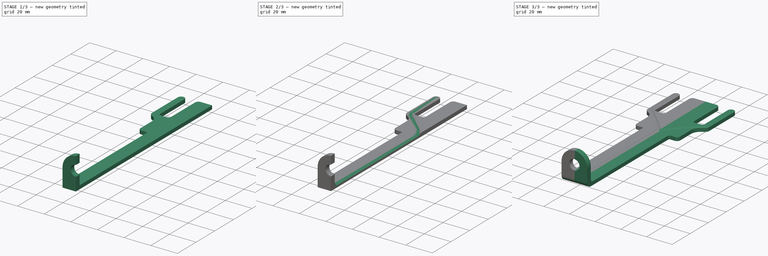
[diagram: build sequence overview — one tinted view per stage of 3, left to right]
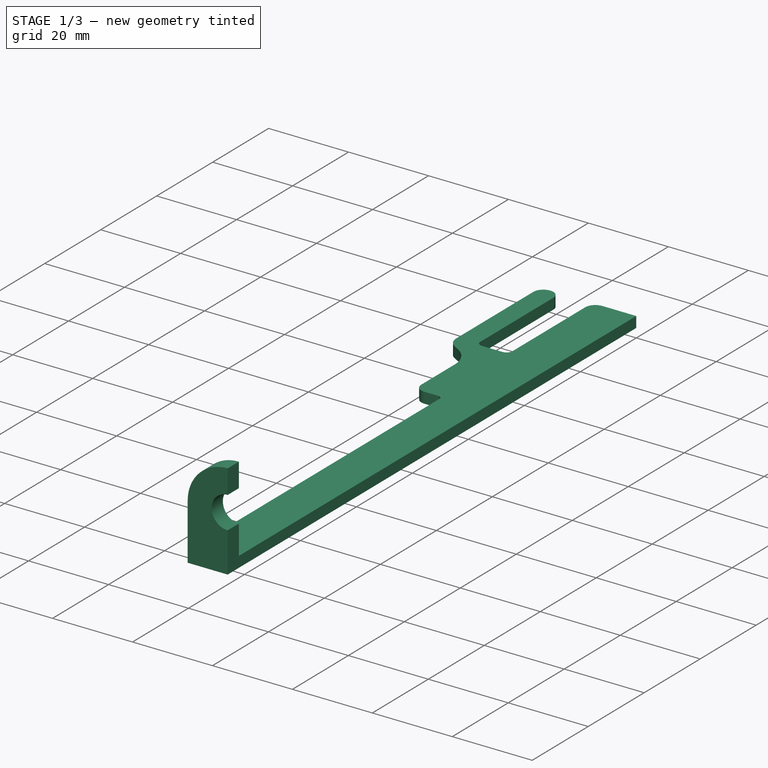
[diagram: stage 1 of 3 — iso view after this stage's code; geometry added in this stage tinted green]
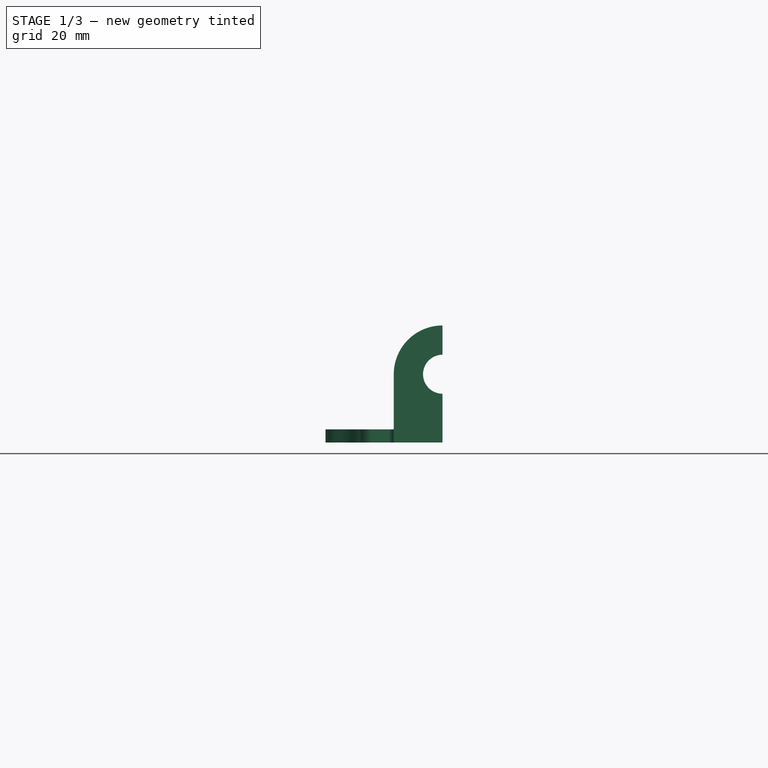
[diagram: stage 1 of 3 — front view after this stage's code; geometry added in this stage tinted green]
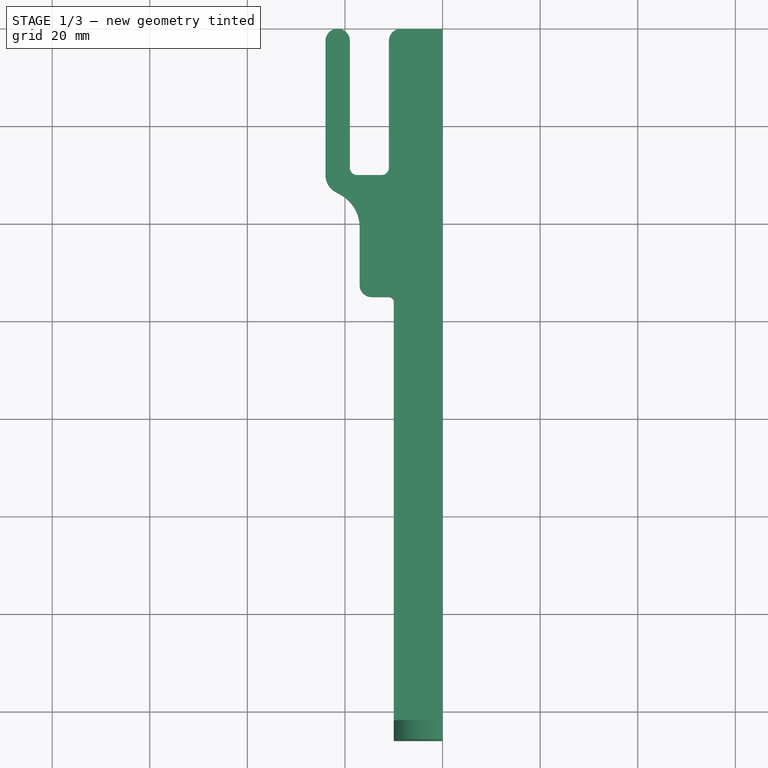
[diagram: stage 1 of 3 — top view after this stage's code; geometry added in this stage tinted green]
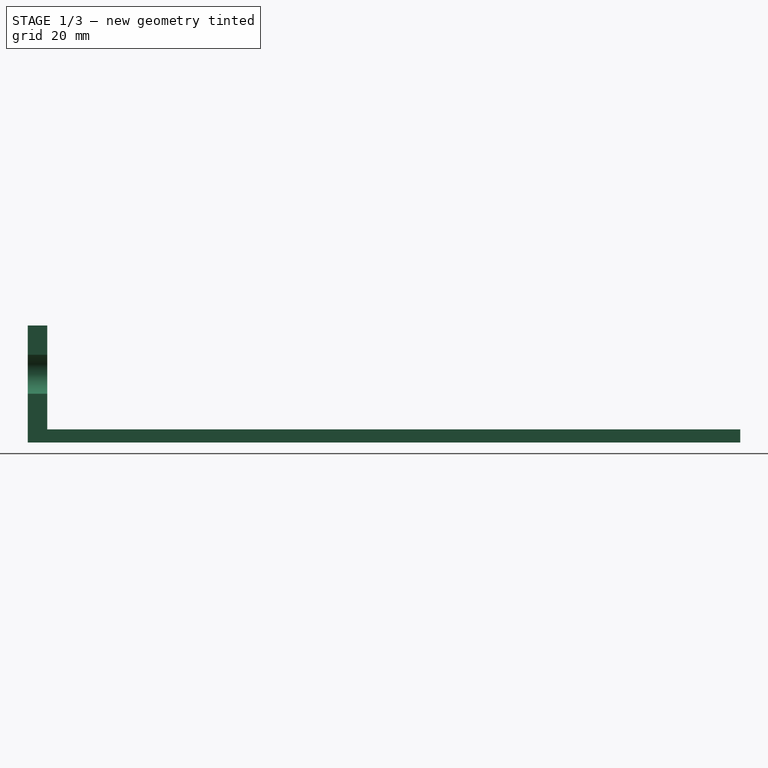
[diagram: stage 1 of 3 — right view after this stage's code; geometry added in this stage tinted green]
FCSTD DOCUMENT  (FreeCAD 0.19R24291 (Git))
Label: shovel
License: All rights reserved
LicenseURL: http://en.wikipedia.org/wiki/All_rights_reserved
objects: Sketcher::SketchObject×7, PartDesign::Pad×3, PartDesign::AdditivePipe×1, PartDesign::Line×1, PartDesign::Revolution×1, PartDesign::Pocket×1, PartDesign::Mirrored×1, PartDesign::Body×1
note: 22 computed .brp shape members not serialized (recipe doc carries the construction recipe); baked Part::Feature solids carry a one-line shape summary decoded from their .brp

FEATURE [Sketcher::SketchObject] Sketch
  FullyConstrained = false
  MapMode = 5
  Support = -> [XY_Plane]
  sketch-geometry (24):
    g0: LineSegment StartX=0 StartY=0 StartZ=0 EndX=-8.5 EndY=0 EndZ=0
    g1: LineSegment StartX=-11 StartY=-2.5 StartZ=0 EndX=-11 EndY=-28.5 EndZ=0
    g2: LineSegment StartX=-12.5 StartY=-30 StartZ=0 EndX=-17.5 EndY=-30 EndZ=0
    g3: LineSegment StartX=-19 StartY=-28.5 StartZ=0 EndX=-19 EndY=-2.5 EndZ=0
    g4: LineSegment StartX=-24 StartY=-2.5 StartZ=0 EndX=-24 EndY=-30 EndZ=0
    g5: ArcOfCircle CenterX=-21.5 CenterY=-2.5 CenterZ=0 NormalX=0 NormalY=0 NormalZ=1 AngleXU=0 Radius=2.5 StartAngle=6.28319 EndAngle=9.42478
    g6: ArcOfCircle CenterX=-8.5 CenterY=-2.5 CenterZ=0 NormalX=0 NormalY=0 NormalZ=1 AngleXU=0 Radius=2.5 StartAngle=1.5708 EndAngle=3.14159
    g7: ArcOfCircle CenterX=-20.0981 CenterY=-30 CenterZ=0 NormalX=0 NormalY=0 NormalZ=1 AngleXU=0 Radius=3.90192 StartAngle=3.14159 EndAngle=4.18879
    g8: ArcOfCircle CenterX=-12.5 CenterY=-28.5 CenterZ=0 NormalX=0 NormalY=0 NormalZ=1 AngleXU=0 Radius=1.5 StartAngle=4.71239 EndAngle=6.28319
    g9: ArcOfCircle CenterX=-17.5 CenterY=-28.5 CenterZ=0 NormalX=0 NormalY=0 NormalZ=1 AngleXU=0 Radius=1.5 StartAngle=3.14159 EndAngle=4.71239
    g10: LineSegment StartX=-19 StartY=49.8892 StartZ=0 EndX=-15 EndY=49.8892 EndZ=0
    g11: LineSegment StartX=-15 StartY=49.8892 StartZ=0 EndX=-11 EndY=49.8892 EndZ=0
    g12: LineSegment StartX=-10 StartY=-56 StartZ=0 EndX=-10 EndY=-142 EndZ=0
    g13: ArcOfCircle CenterX=-24.5 CenterY=-40.6244 CenterZ=0 NormalX=0 NormalY=0 NormalZ=1 AngleXU=0 Radius=7.5 StartAngle=5.6727e-08 EndAngle=1.0472
    g14: ArcOfCircle CenterX=-17.5 CenterY=-28.5 CenterZ=0 NormalX=0 NormalY=0 NormalZ=1 AngleXU=0 Radius=6.5 StartAngle=1.85301 EndAngle=4.85802
    g15: LineSegment StartX=-22.049 StartY=-33.3792 StartZ=0 EndX=-20.75 EndY=-34.1292 EndZ=0
    g16: ArcOfCircle CenterX=-14.5 CenterY=-52.5 CenterZ=0 NormalX=0 NormalY=0 NormalZ=1 AngleXU=0 Radius=2.5 StartAngle=3.14159 EndAngle=4.71239
    g17: ArcOfCircle CenterX=-11 CenterY=-56 CenterZ=0 NormalX=0 NormalY=0 NormalZ=1 AngleXU=0 Radius=1 StartAngle=6.28317 EndAngle=7.85399
    g18: LineSegment StartX=-17 StartY=-40.6244 StartZ=0 EndX=-17 EndY=-52.5 EndZ=0
    g19: LineSegment StartX=-10 StartY=-142 StartZ=0 EndX=0 EndY=-142 EndZ=0
    g20: LineSegment StartX=-14.5 StartY=-55 StartZ=0 EndX=-11 EndY=-55 EndZ=0
    g21: LineSegment StartX=0 StartY=0 StartZ=0 EndX=0 EndY=-142 EndZ=0
    g22: LineSegment StartX=-19 StartY=49.8892 StartZ=0 EndX=-17 EndY=49.8892 EndZ=0
    g23: LineSegment StartX=-17 StartY=49.8892 StartZ=0 EndX=-15 EndY=49.8892 EndZ=0
  constraints (71):
    c: Horizontal(g0)
    c: Vertical(g1)
    c: Horizontal(g2)
    c: Vertical(g3)
    c: Vertical(g4)
    c: Coincident(g5,g3)
    c: Coincident(g5,g4)
    c: Tangent(g1,g6) = -1.5708
    c: Tangent(g0,g6) = -1.5708
    c: Equal(g6,g5)
    c: Tangent(g5,g3)
    c: Tangent(g5,g4)
    c: Horizontal(g5,g6)
    c: PointOnObject(g7,g2)
    c: Coincident(g7,g4)
    c: Tangent(g7,g4)
    c: Tangent(g2,g8) = 1.5708
    c: Tangent(g1,g8) = 1.5708
    c: Tangent(g2,g9) = 1.5708
    c: Tangent(g3,g9) = 1.5708
    c: Equal(g8,g9)
    c: PointOnObject(g10,g3)
    c: Horizontal(g10)
    c: Coincident(g11,g10)
    c: PointOnObject(g11,g1)
    c: Horizontal(g11)
    c: Equal(g10,g11)
    c: Distance(g11,g10) = 8
    c: Distance(g10,g-2) = 15
    c: Diameter(g5) = 5
    c: DistanceY(g2,g0) = 30
    c: Diameter(g8) = 3
    c: Vertical(g12)
    c: Distance(g12,g-2) = 10
    c: Coincident(g14,g9)
    c: Diameter(g14) = 13
    c: Tangent(g13,g14)
    c: Coincident(g15,g7)
    c: Coincident(g15,g13)
    c: Tangent(g7,g15)
    c: Tangent(g15,g13)
    c: Coincident(g17,g12)
    c: Tangent(g17,g12)
    c: DistanceY(g16,g0) = 55
    c: Coincident(g18,g13)
    c: Coincident(g18,g16)
    c: Vertical(g18)
    c: Tangent(g18,g16)
    c: Tangent(g18,g13)
    c: Coincident(g19,g12)
    c: PointOnObject(g19,g-2)
    c: Horizontal(g19)
    c: DistanceY(g19,g16) = 87
    c: Coincident(g20,g16)
    c: Coincident(g20,g17)
    c: Horizontal(g20)
    c: Tangent(g16,g20)
    c: Tangent(g20,g17)
    c: Coincident(g21,g0)
    c: Coincident(g21,g19)
    c: Coincident(g22,g10)
    c: PointOnObject(g22,g10)
    c: Coincident(g23,g22)
    c: Coincident(g23,g10)
    c: Equal(g22,g23)
    c: Vertical(g22,g13)
    c: Diameter(g16) = 5
    c: Tangent(g14,g15)
    c: Diameter(g13) = 15
    c: Coincident(g0,g-1)
    c: Diameter(g17) = 2
FEATURE [PartDesign::Pad] Pad
  Direction = (1,1,1)
  Length = 2.7
  Length2 = 100
  Profile = -> Sketch
  Type = 0
FEATURE [Sketcher::SketchObject] Sketch001
  ExternalGeometry = -> [Pad]
  FullyConstrained = true
  MapMode = 5
  Placement = pos=(0,-142,0) rot=(1,0,0;1.5708rad)
  Support = -> [Pad]
  sketch-geometry (8):
    g0: ArcOfCircle CenterX=0 CenterY=14 CenterZ=0 NormalX=0 NormalY=0 NormalZ=1 AngleXU=0 Radius=4 StartAngle=1.5708 EndAngle=4.71239
    g1: ArcOfCircle CenterX=0 CenterY=14 CenterZ=0 NormalX=0 NormalY=0 NormalZ=1 AngleXU=0 Radius=10 StartAngle=1.5708 EndAngle=3.14159
    g2: LineSegment StartX=-10 StartY=2.7 StartZ=0 EndX=-10 EndY=14 EndZ=0
    g3: LineSegment StartX=0 StartY=24 StartZ=0 EndX=0 EndY=18 EndZ=0
    g4: LineSegment StartX=0 StartY=10 StartZ=0 EndX=0 EndY=2.7 EndZ=0
    g5: LineSegment StartX=-10 StartY=2.7 StartZ=0 EndX=-10 EndY=0 EndZ=0
    g6: LineSegment StartX=-10 StartY=0 StartZ=0 EndX=0 EndY=0 EndZ=0
    g7: LineSegment StartX=0 StartY=0 StartZ=0 EndX=0 EndY=2.7 EndZ=0
  constraints (21):
    c: PointOnObject(g0,g-2)
    c: PointOnObject(g0,g-2)
    c: Coincident(g1,g0)
    c: Coincident(g2,g-3)
    c: Vertical(g2)
    c: Coincident(g1,g2)
    c: PointOnObject(g1,g-2)
    c: PointOnObject(g0,g-2)
    c: Coincident(g3,g1)
    c: Coincident(g3,g0)
    c: Coincident(g4,g0)
    c: Coincident(g4,g-3)
    c: Distance(g0,g-1) = 10
    c: Diameter(g0) = 8
    c: Tangent(g2,g1)
    c: Coincident(g5,g2)
    c: Coincident(g5,g-4)
    c: Coincident(g6,g5)
    c: Coincident(g6,g-1)
    c: Coincident(g7,g6)
    c: Coincident(g7,g4)
FEATURE [PartDesign::Pad] Pad001
  BaseFeature = -> Pad
  Direction = (1,1,1)
  Length = 4
  Length2 = 100
  Profile = -> Sketch001
  Type = 0
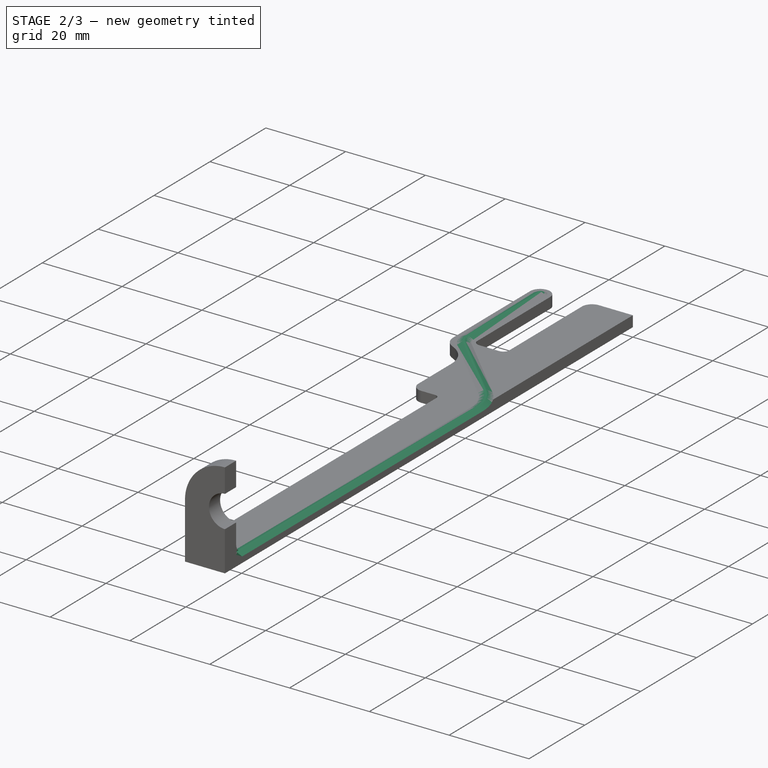
[diagram: stage 2 of 3 — iso view after this stage's code; geometry added in this stage tinted green]
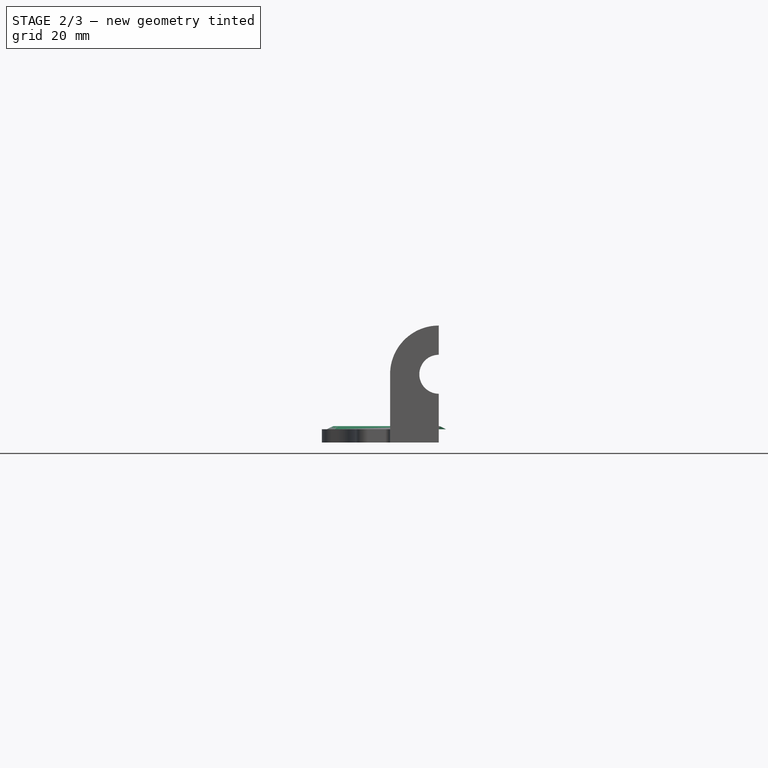
[diagram: stage 2 of 3 — front view after this stage's code; geometry added in this stage tinted green]
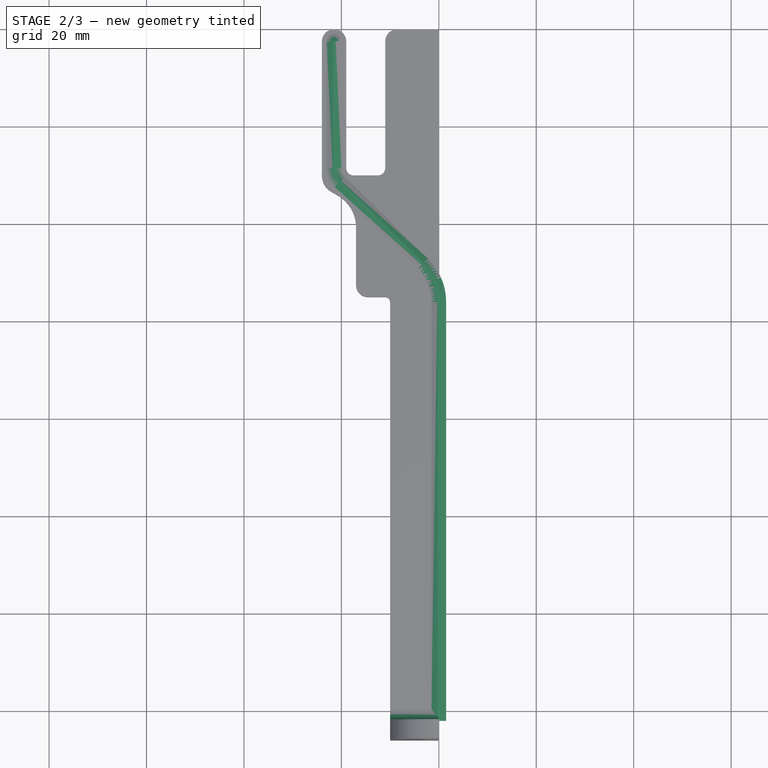
[diagram: stage 2 of 3 — top view after this stage's code; geometry added in this stage tinted green]
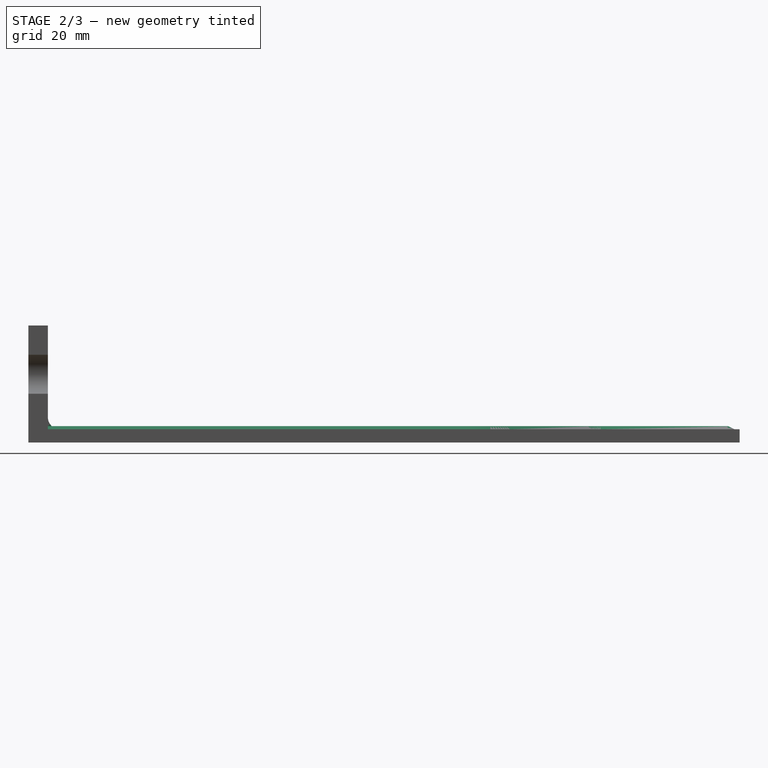
[diagram: stage 2 of 3 — right view after this stage's code; geometry added in this stage tinted green]
FEATURE [Sketcher::SketchObject] Sketch002
  ExternalGeometry = -> [Pad001]
  FullyConstrained = true
  MapMode = 5
  Placement = pos=(0,-142,0) rot=(0,0.707107,0.707107;3.14159rad)
  Support = -> [Pad001]
  sketch-geometry (4):
    g0: ArcOfCircle CenterX=0 CenterY=2.6 CenterZ=0 NormalX=0 NormalY=0 NormalZ=1 AngleXU=0 Radius=0.75 StartAngle=1.11503 EndAngle=2.02656
    g1: LineSegment StartX=0.33011 StartY=3.27344 StartZ=0 EndX=1.5 EndY=2.7 EndZ=0
    g2: LineSegment StartX=-0.33011 StartY=3.27344 StartZ=0 EndX=-1.5 EndY=2.7 EndZ=0
    g3: LineSegment StartX=-1.5 StartY=2.7 StartZ=0 EndX=1.5 EndY=2.7 EndZ=0
  constraints (13):
    c: PointOnObject(g0,g-2)
    c: Coincident(g1,g0)
    c: PointOnObject(g1,g-3)
    c: Tangent(g1,g0)
    c: Coincident(g2,g0)
    c: PointOnObject(g2,g-3)
    c: Equal(g1,g2)
    c: Tangent(g2,g0)
    c: Diameter(g0) = 1.5
    c: Distance(g1,g2) = 3
    c: Distance(g-3,g0) = 0.1
    c: Coincident(g3,g2)
    c: Coincident(g3,g1)
FEATURE [Sketcher::SketchObject] Sketch003
  ExternalGeometry = -> [Pad001]
  FullyConstrained = true
  MapMode = 5
  Placement = pos=(0,0,2.7) rot=(0,0,1;0rad)
  Support = -> [Pad001]
  sketch-geometry (5):
    g0: LineSegment StartX=0 StartY=-142 StartZ=0 EndX=-6.06448e-11 EndY=-56 EndZ=0
    g1: LineSegment StartX=-3.27085 StartY=-48.1731 StartZ=0 EndX=-20.3106 EndY=-31.3461 EndZ=0
    g2: LineSegment StartX=-21.5 StartY=-28.5 StartZ=0 EndX=-21.5 EndY=-2.5 EndZ=0
    g3: ArcOfCircle CenterX=-17.5 CenterY=-28.5 CenterZ=0 NormalX=0 NormalY=0 NormalZ=1 AngleXU=0 Radius=4 StartAngle=3.14159 EndAngle=3.93327
    g4: ArcOfCircle CenterX=-11 CenterY=-56 CenterZ=0 NormalX=0 NormalY=0 NormalZ=1 AngleXU=0 Radius=11 StartAngle=6.28318 EndAngle=7.07487
  constraints (14):
    c: Coincident(g0,g-3)
    c: PointOnObject(g0,g-2)
    c: Coincident(g2,g-6)
    c: Vertical(g2)
    c: Coincident(g3,g-5)
    c: Coincident(g3,g1)
    c: Coincident(g3,g2)
    c: Coincident(g4,g-4)
    c: Coincident(g4,g0)
    c: Coincident(g4,g1)
    c: Tangent(g4,g1)
    c: Tangent(g1,g3)
    c: Tangent(g3,g2)
    c: Tangent(g4,g0)
FEATURE [PartDesign::AdditivePipe] AdditivePipe
  AuxilleryCurvelinear = true
  AuxillerySpineTangent = false
  BaseFeature = -> Pad001
  Binormal = (0,0,0)
  Mode = 0
  Profile = -> Sketch002
  Spine = -> Sketch003
  SpineTangent = false
  Transformation = 0
  Transition = 0
FEATURE [Sketcher::SketchObject] Sketch004
  ExternalGeometry = -> [AdditivePipe]
  FullyConstrained = true
  MapMode = 5
  Placement = pos=(-10,0,0) rot=(0.57735,-0.57735,-0.57735;2.0944rad)
  Support = -> [AdditivePipe]
  sketch-geometry (3):
    g0: ArcOfCircle CenterX=139.5 CenterY=5.2 CenterZ=0 NormalX=0 NormalY=0 NormalZ=1 AngleXU=0 Radius=2.5 StartAngle=4.71239 EndAngle=6.28318
    g1: LineSegment StartX=142 StartY=2.7 StartZ=0 EndX=142 EndY=5.19998 EndZ=0
    g2: LineSegment StartX=142 StartY=2.7 StartZ=0 EndX=139.5 EndY=2.7 EndZ=0
  constraints (9):
    c: Coincident(g1,g-3)
    c: Coincident(g1,g0)
    c: Vertical(g1)
    c: Tangent(g1,g0)
    c: Coincident(g2,g1)
    c: Coincident(g2,g0)
    c: Tangent(g2,g0)
    c: Horizontal(g2)
    c: Diameter(g0) = 5
FEATURE [PartDesign::Pad] Pad002
  BaseFeature = -> AdditivePipe
  Direction = (1,1,1)
  Length = 10
  Length2 = 100
  Profile = -> Sketch004
  Type = 3
  UpToFace = -> AdditivePipe [Face36]
FEATURE [Sketcher::SketchObject] Sketch005
  ExternalGeometry = -> [Pad002]
  FullyConstrained = true
  MapMode = 5
  Placement = pos=(8.4612e-06,-2.49993,-1.83e-14) rot=(-1e-06,0.707107,0.707107;3.1416rad)
  Support = -> [Pad002]
  sketch-geometry (4):
    g0: ArcOfCircle CenterX=21.5 CenterY=2.6 CenterZ=0 NormalX=0 NormalY=0 NormalZ=1 AngleXU=0 Radius=0.75 StartAngle=1.5708 EndAngle=2.02656
    g1: LineSegment StartX=21.1699 StartY=3.27344 StartZ=0 EndX=20 EndY=2.7 EndZ=0
    g2: LineSegment StartX=20 StartY=2.7 StartZ=0 EndX=21.5 EndY=2.7 EndZ=0
    g3: LineSegment StartX=21.5 StartY=2.7 StartZ=0 EndX=21.5 EndY=3.35 EndZ=0
  constraints (10):
    c: Coincident(g0,g-3)
    c: Coincident(g0,g-4)
    c: Coincident(g1,g0)
    c: Coincident(g1,g-4)
    c: Coincident(g2,g1)
    c: Horizontal(g2)
    c: Coincident(g3,g2)
    c: Coincident(g3,g0)
    c: Vertical(g3)
    c: PointOnObject(g0,g3)
FEATURE [PartDesign::Line] DatumLine
  AttacherType = Attacher::AttachEngineLine
  Length = 20
  MapMode = 29
  Placement = pos=(-21.5,-2.5,-1.82e-14) rot=(0,0,1;0rad)
  ResizeMode = 0
  Support = -> [Sketch005]
FEATURE [PartDesign::Revolution] Revolution
  Angle = 180
  Axis = (0,-7.5e-15,1)
  Base = (-21.5,-2.5,-1.82e-14)
  BaseFeature = -> Pad002
  Profile = -> Sketch005
  ReferenceAxis = -> DatumLine
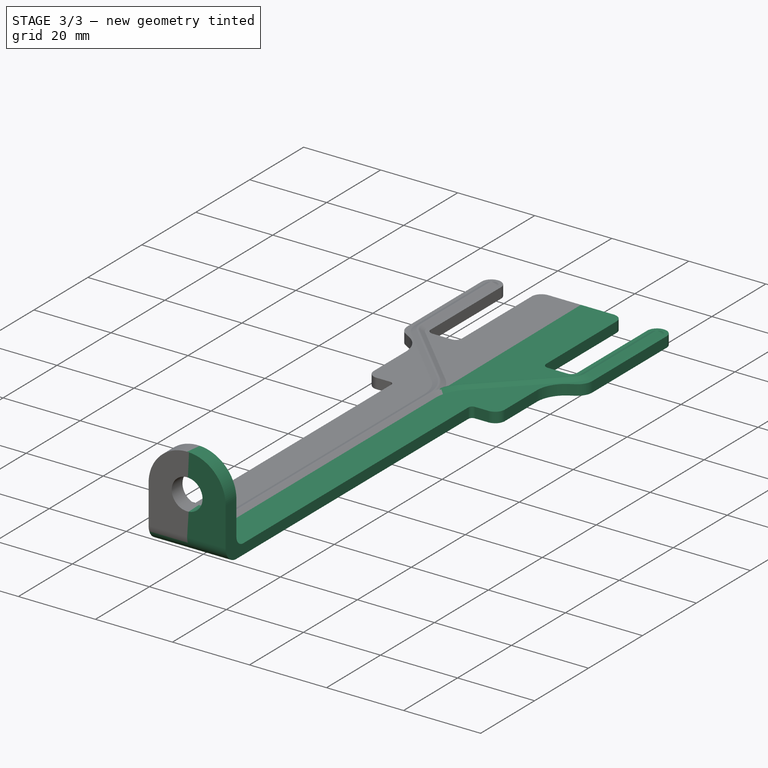
[diagram: stage 3 of 3 — iso view after this stage's code; geometry added in this stage tinted green]
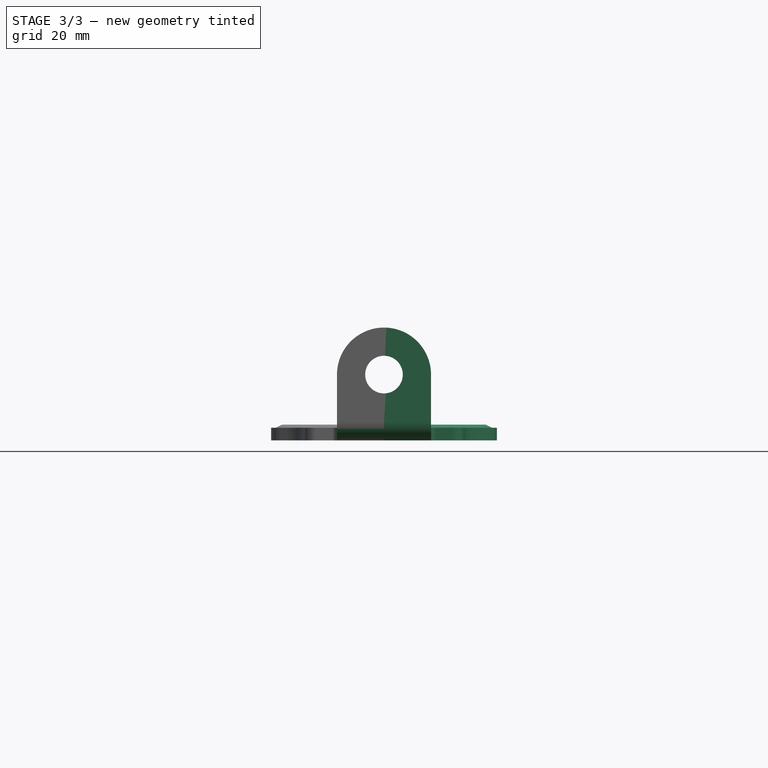
[diagram: stage 3 of 3 — front view after this stage's code; geometry added in this stage tinted green]
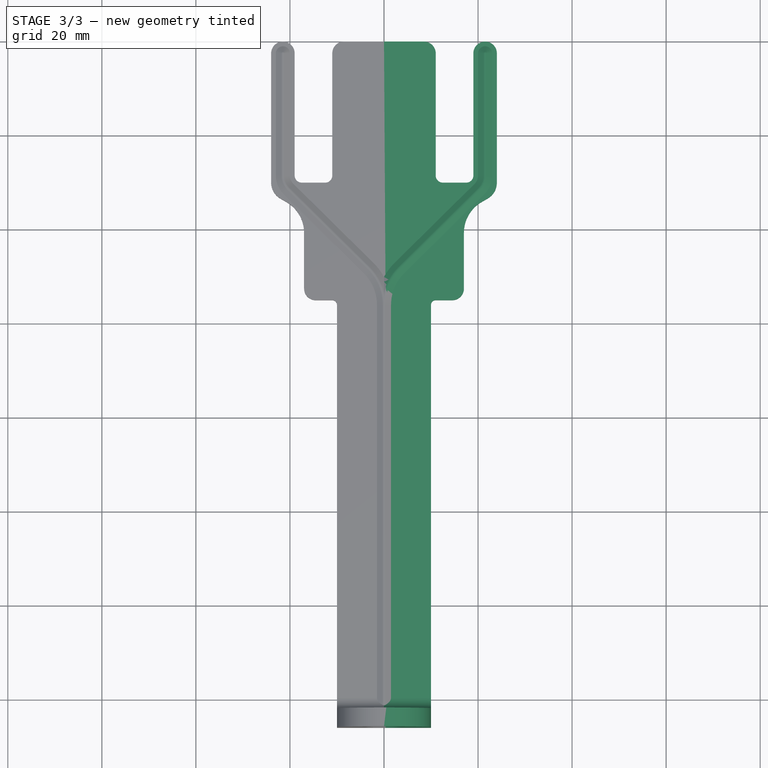
[diagram: stage 3 of 3 — top view after this stage's code; geometry added in this stage tinted green]
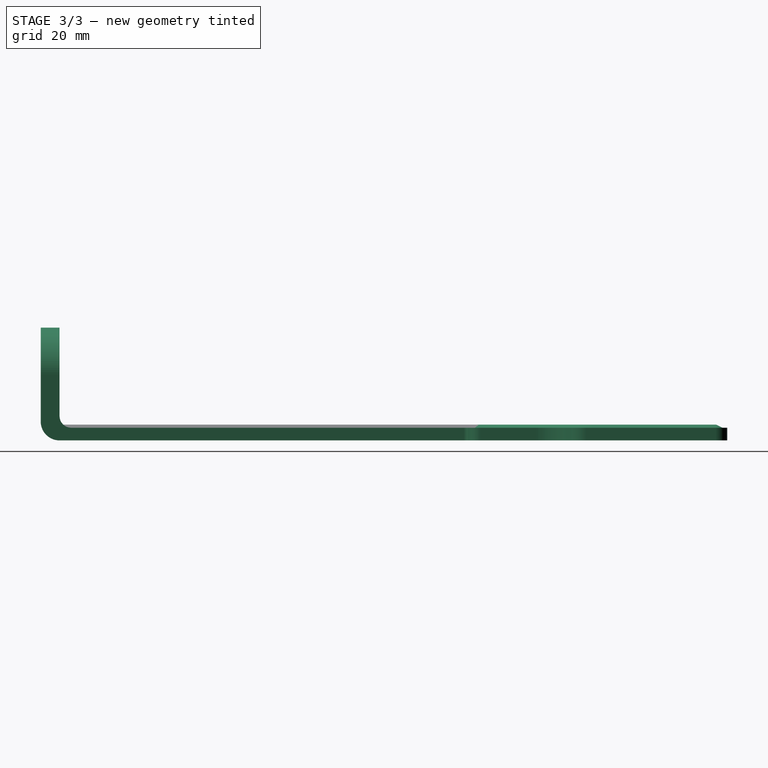
[diagram: stage 3 of 3 — right view after this stage's code; geometry added in this stage tinted green]
FEATURE [Sketcher::SketchObject] Sketch006
  ExternalGeometry = -> [Revolution]
  FullyConstrained = true
  MapMode = 5
  Placement = pos=(-10,0,0) rot=(0.57735,-0.57735,-0.57735;2.0944rad)
  Support = -> [Revolution]
  sketch-geometry (3):
    g0: ArcOfCircle CenterX=142 CenterY=4 CenterZ=0 NormalX=0 NormalY=0 NormalZ=1 AngleXU=0 Radius=4 StartAngle=4.71239 EndAngle=6.28319
    g1: LineSegment StartX=146 StartY=9e-16 StartZ=0 EndX=142 EndY=0 EndZ=0
    g2: LineSegment StartX=146 StartY=9e-16 StartZ=0 EndX=146 EndY=4.00001 EndZ=0
  constraints (8):
    c: Coincident(g0,g-3)
    c: Coincident(g1,g-3)
    c: Coincident(g1,g0)
    c: Tangent(g1,g0)
    c: Coincident(g2,g1)
    c: Coincident(g2,g0)
    c: Tangent(g2,g0)
    c: Vertical(g2)
FEATURE [PartDesign::Pocket] Pocket
  BaseFeature = -> Revolution
  Length = 0
  Length2 = 100
  Profile = -> Sketch006
  Type = 3
  UpToFace = -> Revolution [Face6]
FEATURE [PartDesign::Mirrored] Mirrored
  BaseFeature = -> Pocket
  MirrorPlane = -> Sketch [V_Axis]
  Originals = -> [Pad,Pad001,AdditivePipe,Pad002,Revolution,Pocket]
FEATURE [PartDesign::Body] Body
  Group = -> [Sketch,Pad,Sketch001,Pad001,Sketch002,Sketch003,AdditivePipe,Sketch004,Pad002,Sketch005,DatumLine,Revolution,Sketch006,Pocket,Mirrored]
  Origin = -> Origin
  Tip = -> Mirrored
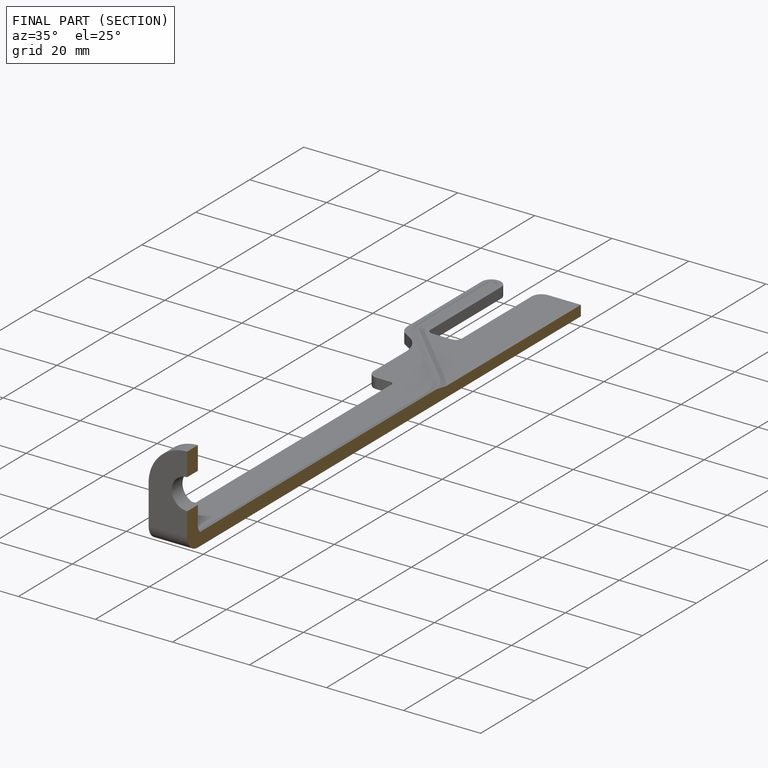
[diagram: finished part — half-section view (interior)]
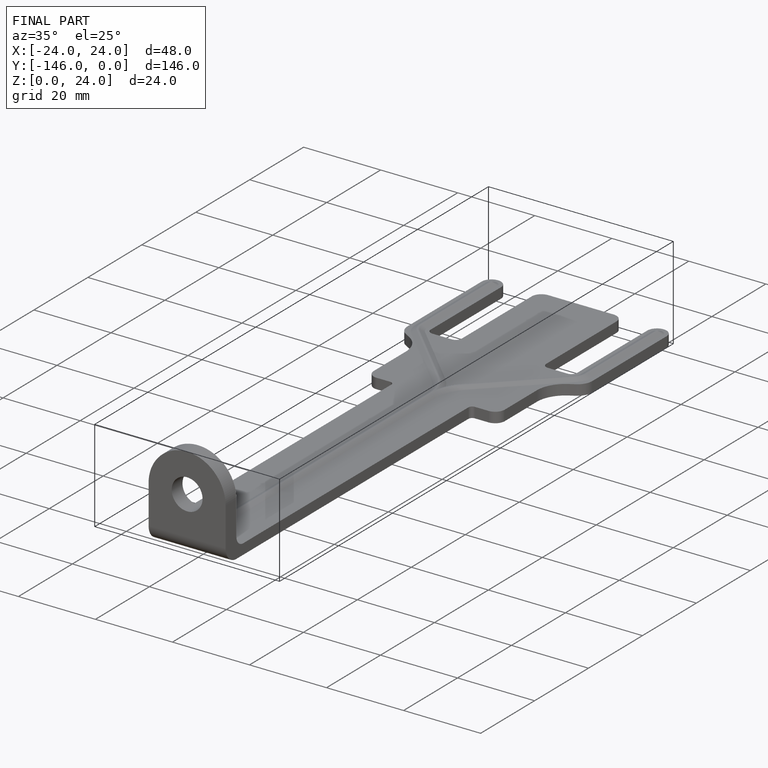
[diagram: finished part — iso view with bounding-box wireframe]
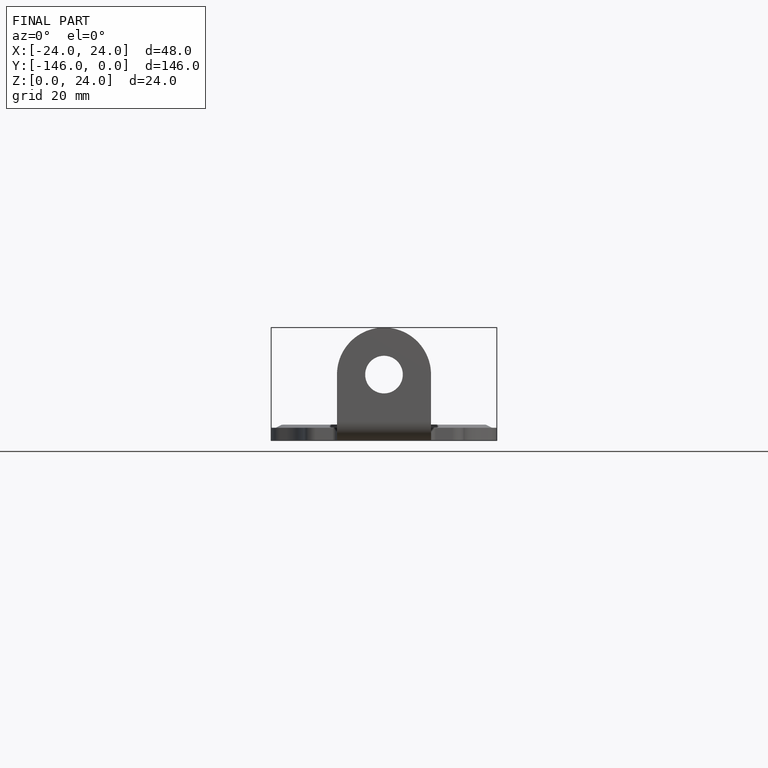
[diagram: finished part — front view with bounding-box wireframe]
